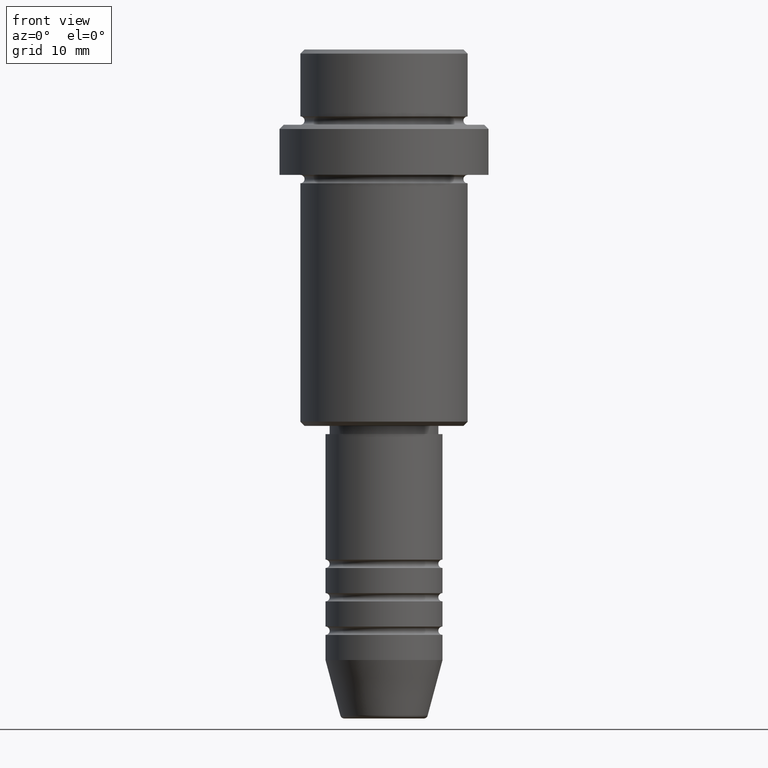
[diagram: clean part render]
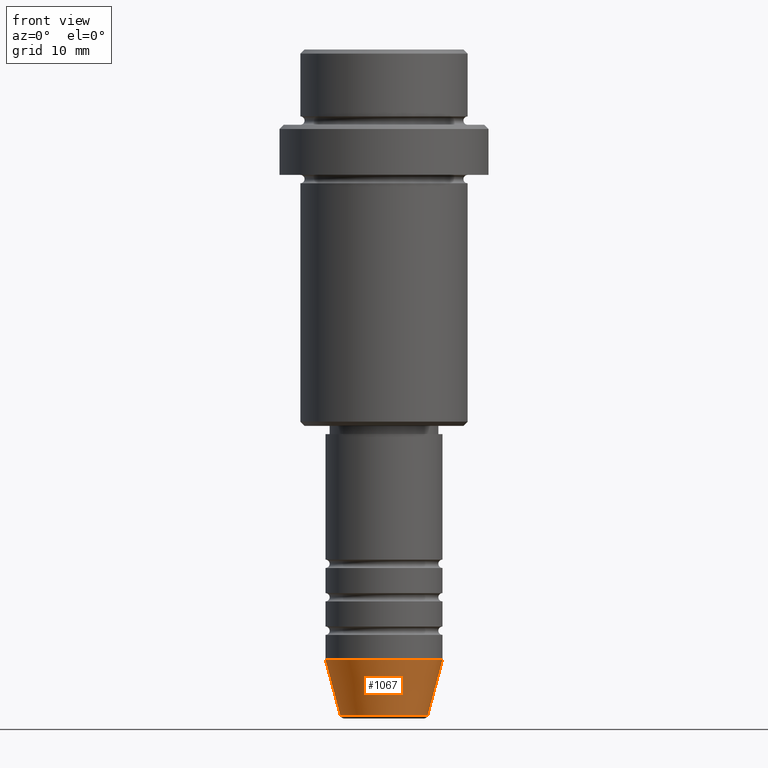
[diagram: same view with one face highlighted and labeled with its STEP entity id]
A machine part, front view. The second image highlights one B-rep face of the part: STEP entity #1067.
In plain terms, the highlighted conical surface has half-angle 15 deg.
Its self-contained STEP definition (entity closure, byte-faithful):
#2 = VERTEX_POINT ( 'NONE', #932 ) ;
#13 = DIRECTION ( 'NONE',  ( 1.000000000000000000, 0.000000000000000000, 0.000000000000000000 ) ) ;
#32 = VECTOR ( 'NONE', #1118, 1000.000000000000000 ) ;
#66 = CARTESIAN_POINT ( 'NONE',  ( -7.000000000000000000, 8.572527594031473190E-16, -73.00000000000001421 ) ) ;
#103 = EDGE_LOOP ( 'NONE', ( #425, #1297, #1307, #767 ) ) ;
#108 = LINE ( 'NONE', #332, #910 ) ;
#143 = DIRECTION ( 'NONE',  ( -0.000000000000000000, -0.000000000000000000, 1.000000000000000000 ) ) ;
#157 = AXIS2_PLACEMENT_3D ( 'NONE', #553, #1331, #863 ) ;
#203 = CARTESIAN_POINT ( 'NONE',  ( -5.223655072137193045, 7.484830028987060174E-16, -79.62940952255125637 ) ) ;
#222 = CARTESIAN_POINT ( 'NONE',  ( 0.000000000000000000, 0.000000000000000000, -73.00000000000001421 ) ) ;
#240 = EDGE_CURVE ( 'NONE', #1252, #2, #678, .T. ) ;
#304 = CARTESIAN_POINT ( 'NONE',  ( 5.223655072137193045, 0.000000000000000000, -79.62940952255125637 ) ) ;
#332 = CARTESIAN_POINT ( 'NONE',  ( -7.000000000000000000, 8.572527594031473190E-16, -73.00000000000001421 ) ) ;
#343 = EDGE_CURVE ( 'NONE', #1271, #1252, #760, .T. ) ;
#347 = DIRECTION ( 'NONE',  ( -0.2588190451025213501, 3.169619151431772337E-17, 0.9659258262890680902 ) ) ;
#425 = ORIENTED_EDGE ( 'NONE', *, *, #1008, .F. ) ;
#465 = CARTESIAN_POINT ( 'NONE',  ( 7.000000000000000000, 0.000000000000000000, -73.00000000000001421 ) ) ;
#550 = DIRECTION ( 'NONE',  ( -0.000000000000000000, -0.000000000000000000, 1.000000000000000000 ) ) ;
#553 = CARTESIAN_POINT ( 'NONE',  ( 0.000000000000000000, 0.000000000000000000, -79.62940952255125637 ) ) ;
#674 = AXIS2_PLACEMENT_3D ( 'NONE', #794, #143, #1033 ) ;
#678 = LINE ( 'NONE', #465, #32 ) ;
#760 = CIRCLE ( 'NONE', #157, 5.223655072137193045 ) ;
#767 = ORIENTED_EDGE ( 'NONE', *, *, #1147, .F. ) ;
#794 = CARTESIAN_POINT ( 'NONE',  ( 0.000000000000000000, 0.000000000000000000, -73.00000000000001421 ) ) ;
#863 = DIRECTION ( 'NONE',  ( 1.000000000000000000, 0.000000000000000000, 0.000000000000000000 ) ) ;
#881 = CIRCLE ( 'NONE', #674, 7.000000000000000000 ) ;
#910 = VECTOR ( 'NONE', #347, 1000.000000000000000 ) ;
#932 = CARTESIAN_POINT ( 'NONE',  ( 7.000000000000000000, 0.000000000000000000, -73.00000000000001421 ) ) ;
#1008 = EDGE_CURVE ( 'NONE', #1271, #1354, #108, .T. ) ;
#1033 = DIRECTION ( 'NONE',  ( 1.000000000000000000, 0.000000000000000000, 0.000000000000000000 ) ) ;
#1067 = ADVANCED_FACE ( 'NONE', ( #1207 ), #1220, .T. ) ;
#1118 = DIRECTION ( 'NONE',  ( 0.2588190451025213501, 0.000000000000000000, 0.9659258262890680902 ) ) ;
#1147 = EDGE_CURVE ( 'NONE', #1354, #2, #881, .T. ) ;
#1207 = FACE_OUTER_BOUND ( 'NONE', #103, .T. ) ;
#1220 = CONICAL_SURFACE ( 'NONE', #1236, 7.000000000000000000, 0.2617993877991500740 ) ;
#1236 = AXIS2_PLACEMENT_3D ( 'NONE', #222, #550, #13 ) ;
#1252 = VERTEX_POINT ( 'NONE', #304 ) ;
#1271 = VERTEX_POINT ( 'NONE', #203 ) ;
#1297 = ORIENTED_EDGE ( 'NONE', *, *, #343, .T. ) ;
#1307 = ORIENTED_EDGE ( 'NONE', *, *, #240, .T. ) ;
#1331 = DIRECTION ( 'NONE',  ( -0.000000000000000000, -0.000000000000000000, 1.000000000000000000 ) ) ;
#1354 = VERTEX_POINT ( 'NONE', #66 ) ;